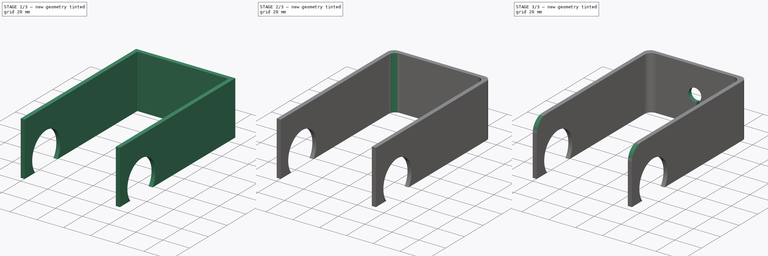
[diagram: build sequence overview — one tinted view per stage of 3, left to right]
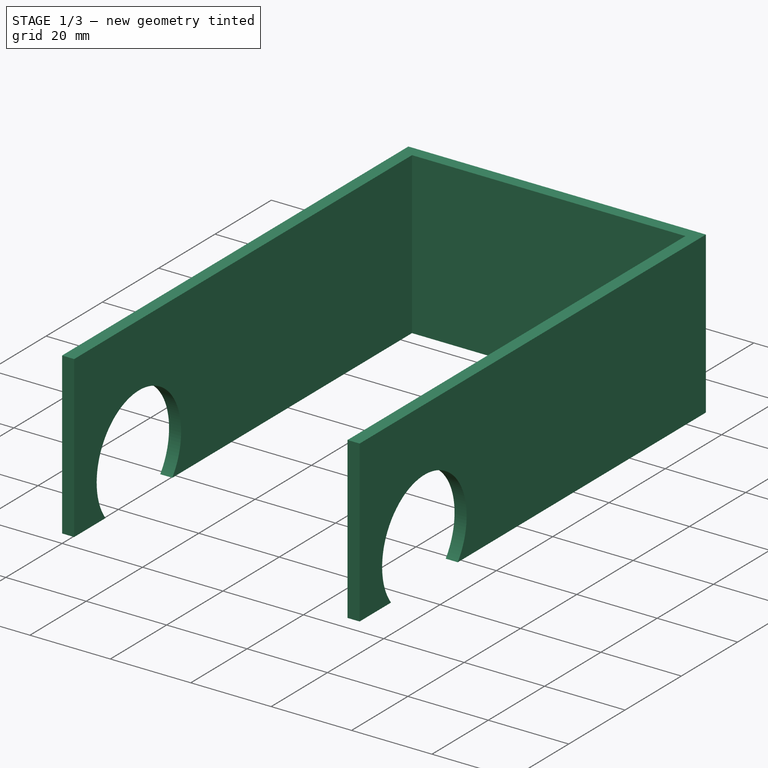
[diagram: stage 1 of 3 — iso view after this stage's code; geometry added in this stage tinted green]
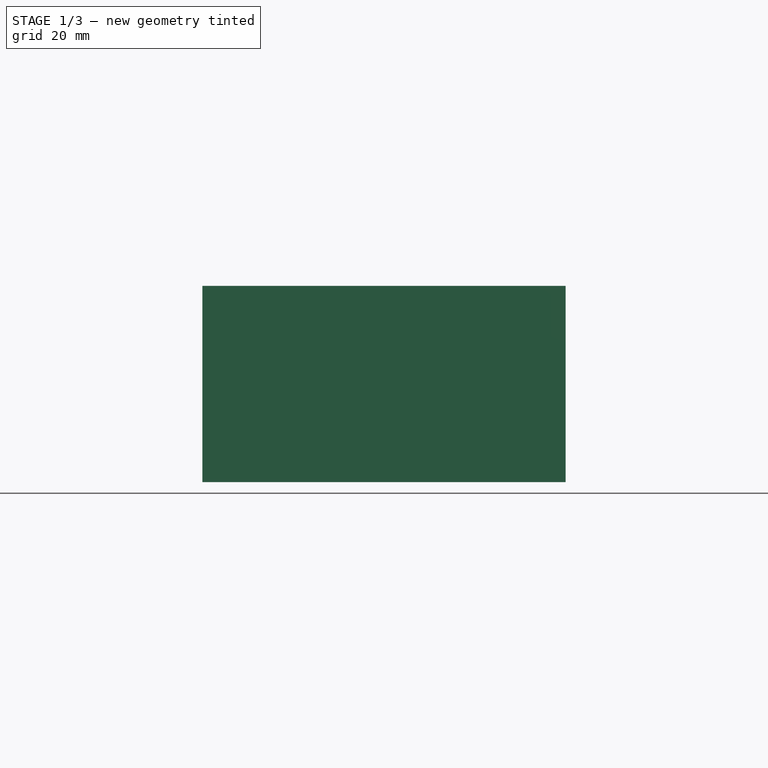
[diagram: stage 1 of 3 — front view after this stage's code; geometry added in this stage tinted green]
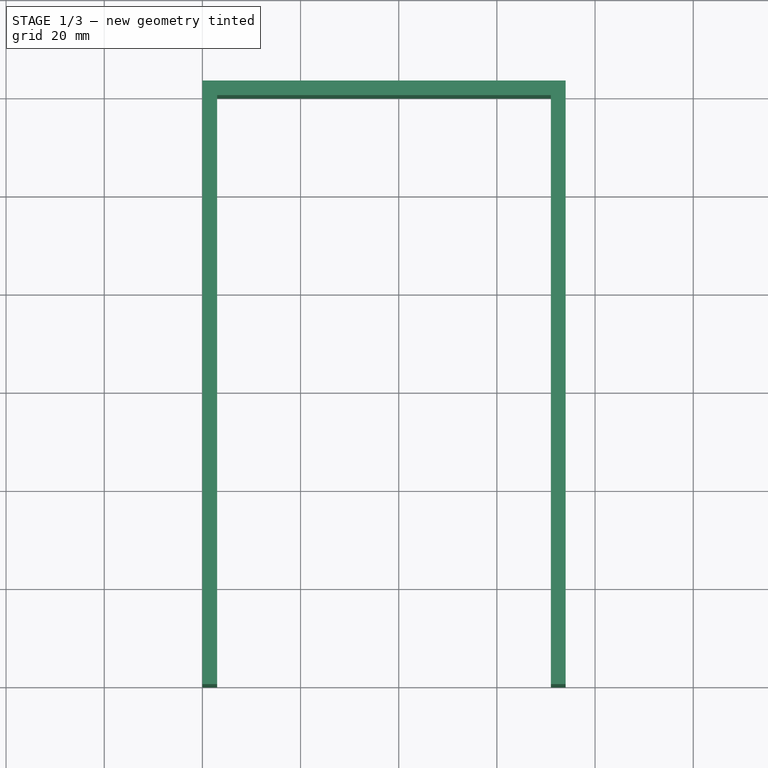
[diagram: stage 1 of 3 — top view after this stage's code; geometry added in this stage tinted green]
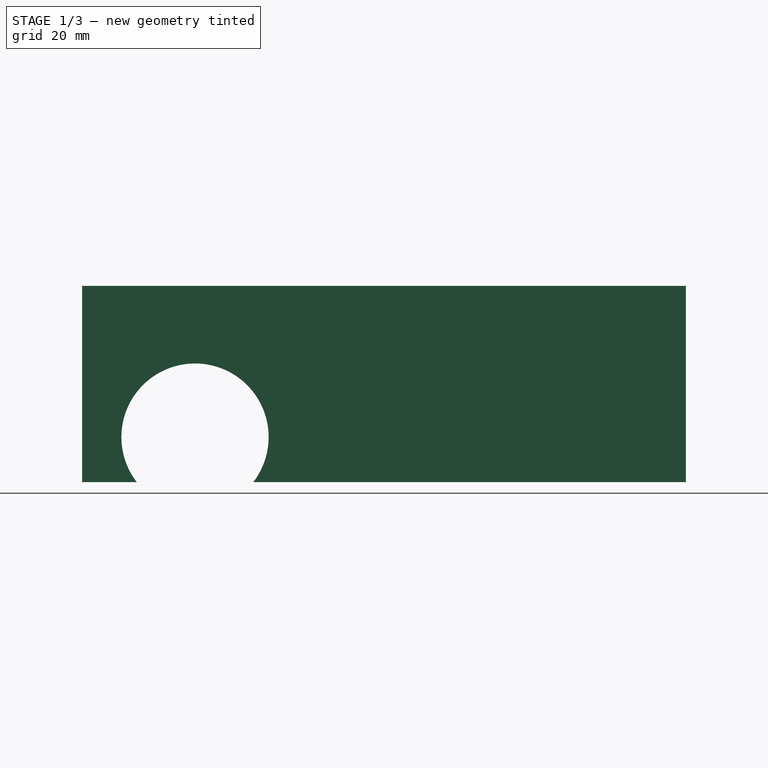
[diagram: stage 1 of 3 — right view after this stage's code; geometry added in this stage tinted green]
FCSTD DOCUMENT  (FreeCAD 0.16R4928 (Git))
Label: guia-carrete
License: All rights reserved
LicenseURL: http://en.wikipedia.org/wiki/All_rights_reserved
objects: Sketcher::SketchObject×3, PartDesign::Pocket×2, PartDesign::Fillet×2, PartDesign::Pad×1
note: 11 computed .brp shape members not serialized (recipe doc carries the construction recipe); baked Part::Feature solids carry a one-line shape summary decoded from their .brp

FEATURE [Sketcher::SketchObject] Sketch
  sketch-geometry (8):
    g0: LineSegment StartX=0 StartY=0 StartZ=0 EndX=0 EndY=123 EndZ=0
    g1: LineSegment StartX=0 StartY=123 StartZ=0 EndX=74 EndY=123 EndZ=0
    g2: LineSegment StartX=74 StartY=123 StartZ=0 EndX=74 EndY=0 EndZ=0
    g3: LineSegment StartX=74 StartY=0 StartZ=0 EndX=71 EndY=0 EndZ=0
    g4: LineSegment StartX=71 StartY=0 StartZ=0 EndX=71 EndY=120 EndZ=0
    g5: LineSegment StartX=71 StartY=120 StartZ=0 EndX=3 EndY=120 EndZ=0
    g6: LineSegment StartX=3 StartY=120 StartZ=0 EndX=3 EndY=0 EndZ=0
    g7: LineSegment StartX=3 StartY=0 StartZ=0 EndX=0 EndY=0 EndZ=0
  constraints (22):
    c: Coincident(g-1,g0)
    c: Vertical(g0)
    c: Coincident(g0,g1)
    c: Horizontal(g1)
    c: Coincident(g1,g2)
    c: PointOnObject(g2,g-1)
    c: Vertical(g2)
    c: Coincident(g2,g3)
    c: Horizontal(g3)
    c: Coincident(g3,g4)
    c: Vertical(g4)
    c: Coincident(g4,g5)
    c: Horizontal(g5)
    c: Coincident(g5,g6)
    c: Vertical(g6)
    c: Coincident(g6,g7)
    c: Coincident(g7,g0)
    c: Horizontal(g7)
    c: Equal(g7,g3)
    c: Distance(g7) = 3
    c: Distance(g6) = 120
    c: Distance(g5,g1) = 3
FEATURE [PartDesign::Pad] Pad
  Length = 40
  Length2 = 100
  Sketch = -> Sketch
  Type = 0
FEATURE [Sketcher::SketchObject] Sketch001
  ExternalGeometry = -> [Pad]
  Placement = pos=(0,0,0) rot=(0.57735,-0.57735,-0.57735;2.0944rad)
  Support = -> Pad [Face1]
  sketch-geometry (1):
    g0: Circle CenterX=-23 CenterY=9.18254 CenterZ=0 NormalX=0 NormalY=0 NormalZ=1 Radius=15
  constraints (2):
    c: Radius(g0) = 15
    c: Distance(g0,g-5) = 100
FEATURE [PartDesign::Pocket] Pocket
  Length = 5
  Sketch = -> Sketch001
  Type = 1
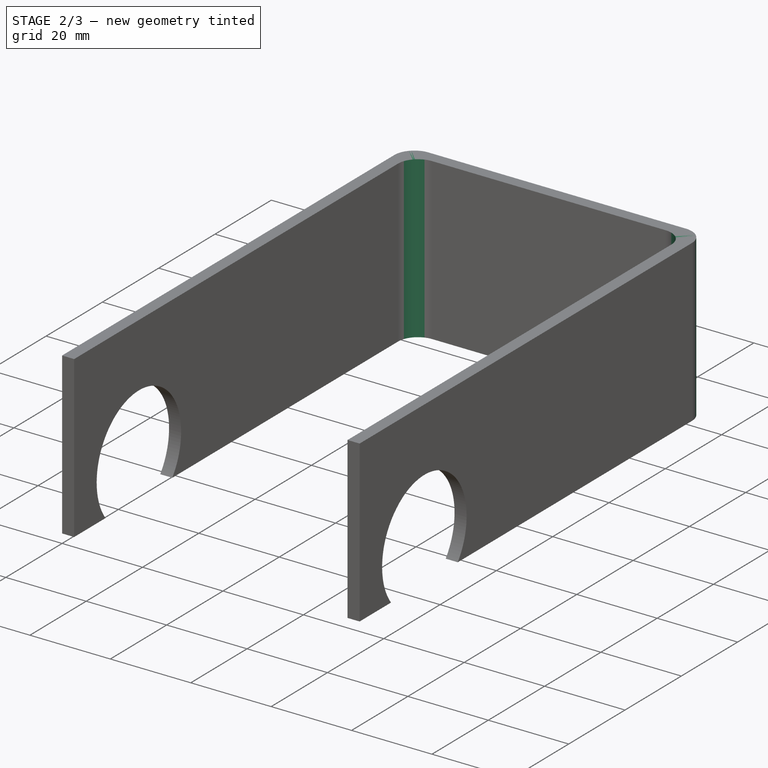
[diagram: stage 2 of 3 — iso view after this stage's code; geometry added in this stage tinted green]
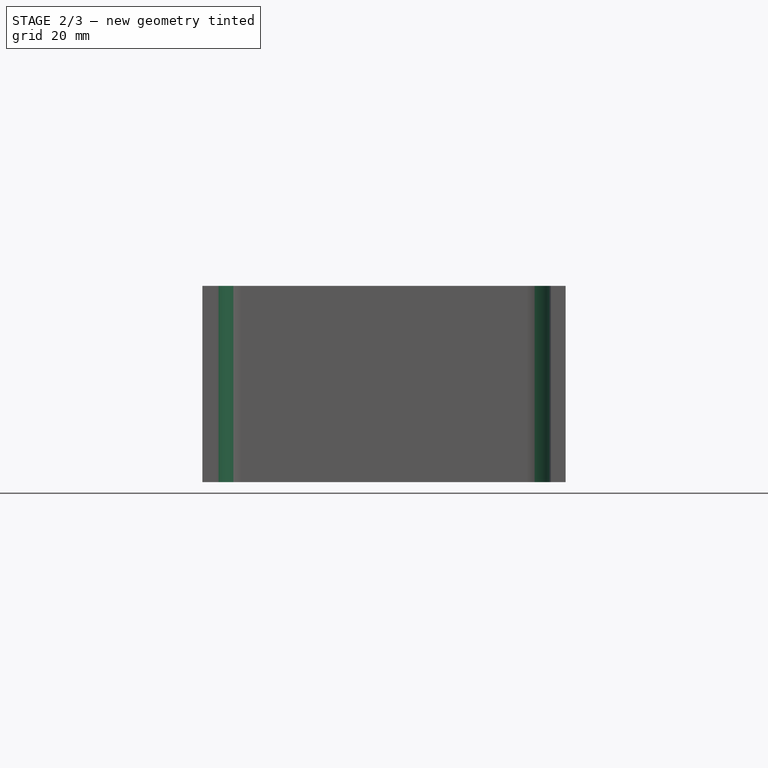
[diagram: stage 2 of 3 — front view after this stage's code; geometry added in this stage tinted green]
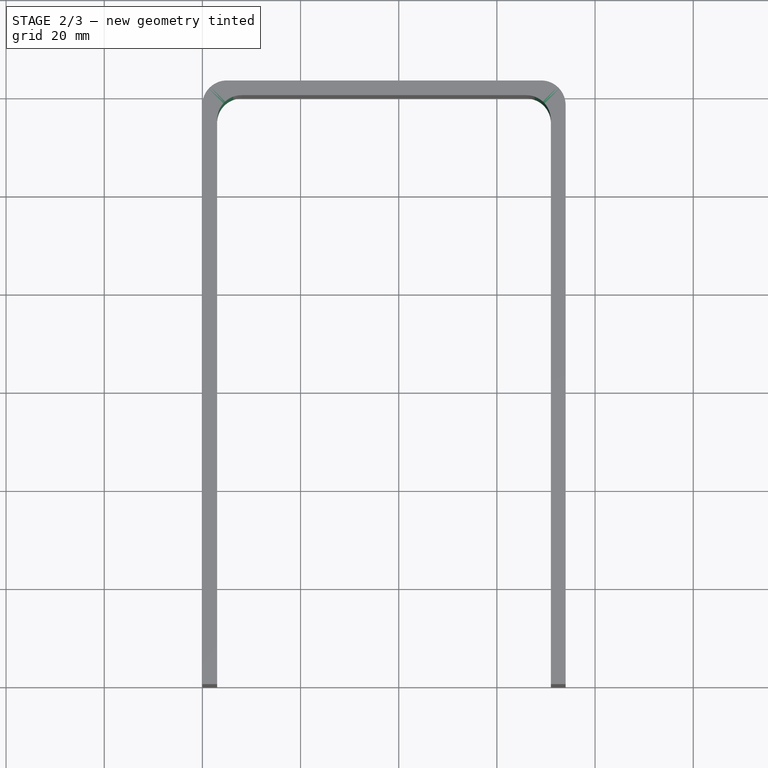
[diagram: stage 2 of 3 — top view after this stage's code; geometry added in this stage tinted green]
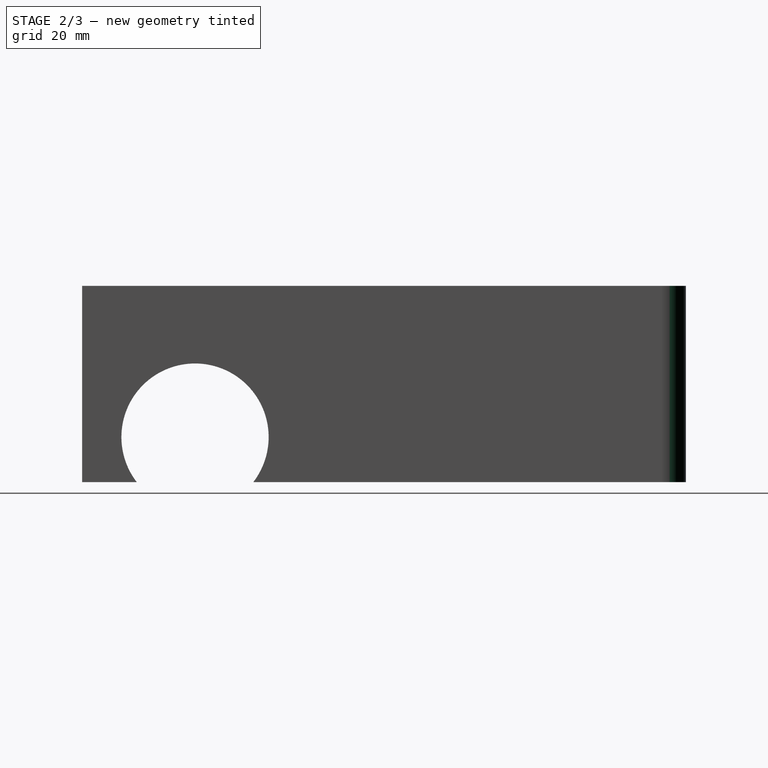
[diagram: stage 2 of 3 — right view after this stage's code; geometry added in this stage tinted green]
FEATURE [PartDesign::Fillet] Fillet
  Base = -> Pocket [Edge5,Edge21,Edge39,Edge30]
  Radius = 5
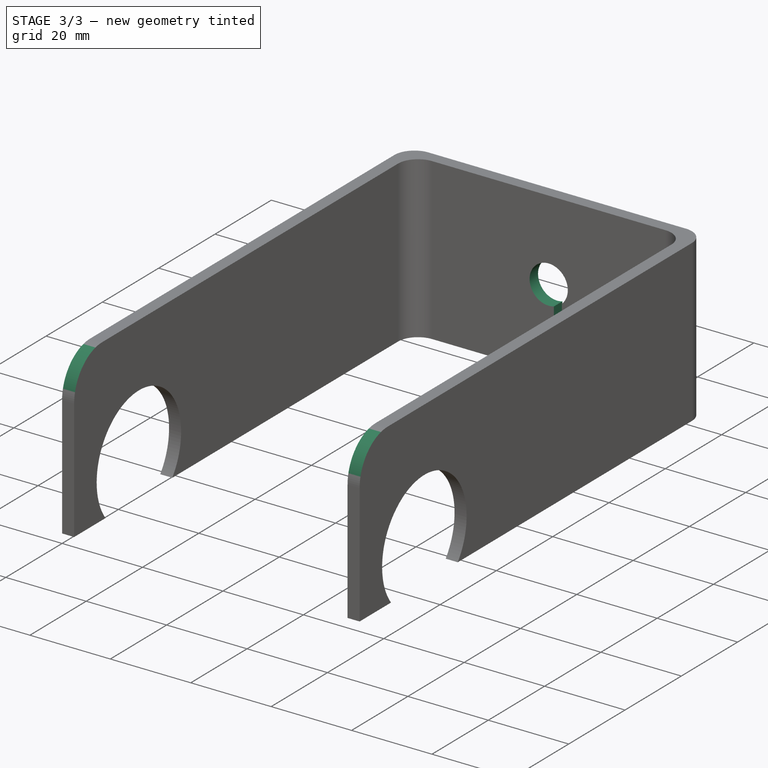
[diagram: stage 3 of 3 — iso view after this stage's code; geometry added in this stage tinted green]
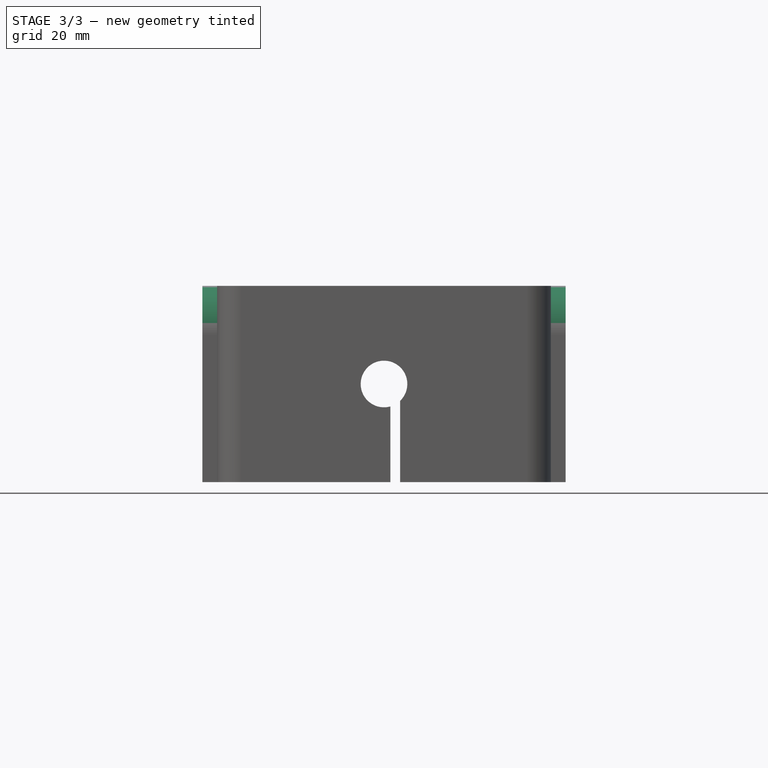
[diagram: stage 3 of 3 — front view after this stage's code; geometry added in this stage tinted green]
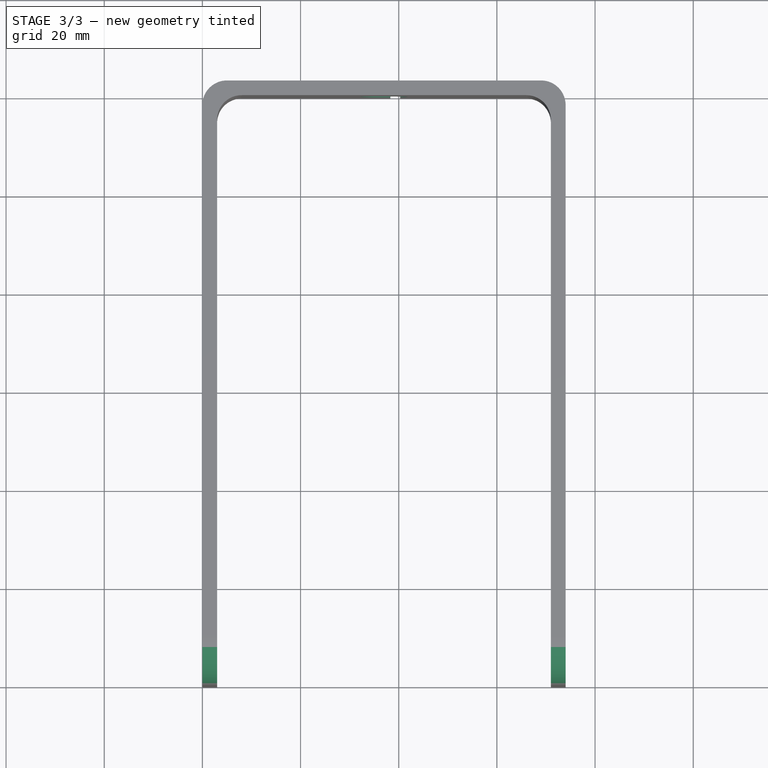
[diagram: stage 3 of 3 — top view after this stage's code; geometry added in this stage tinted green]
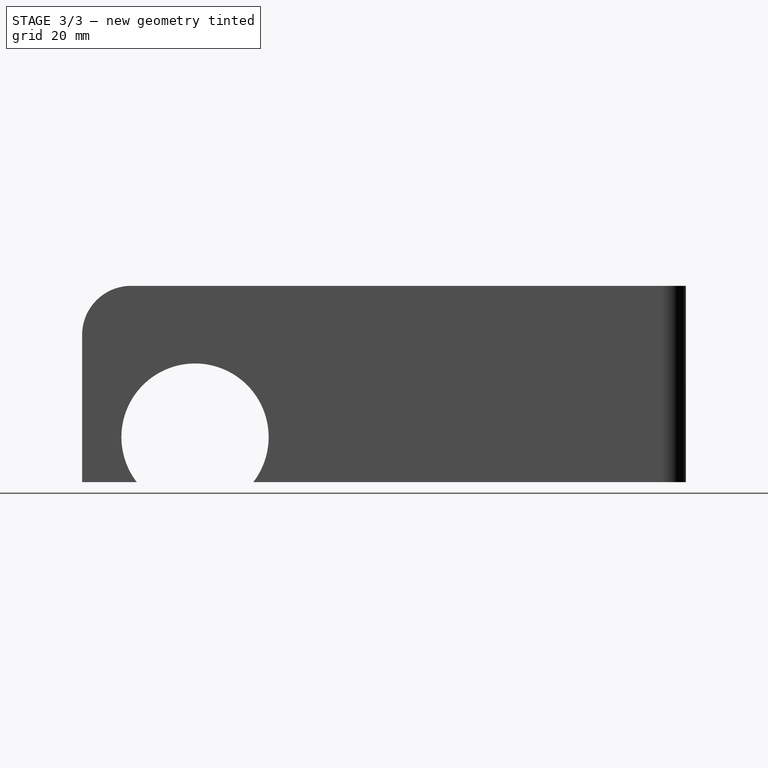
[diagram: stage 3 of 3 — right view after this stage's code; geometry added in this stage tinted green]
FEATURE [PartDesign::Fillet] Fillet001
  Base = -> Fillet [Edge30,Edge23]
  Radius = 10
FEATURE [Sketcher::SketchObject] Sketch002
  ExternalGeometry = -> [Fillet001]
  Placement = pos=(0,123,0) rot=(0,0.707107,0.707107;3.14159rad)
  Support = -> Fillet001 [Face11]
  sketch-geometry (6):
    g0: LineSegment [constr] StartX=-69 StartY=40 StartZ=0 EndX=-37 EndY=20 EndZ=0
    g1: LineSegment [constr] StartX=-37 StartY=20 StartZ=0 EndX=-5 EndY=0 EndZ=0
    g2: ArcOfCircle CenterX=-37 CenterY=20 CenterZ=0 NormalX=0 NormalY=0 NormalZ=1 Radius=4.75 StartAngle=4.43693 EndAngle=10.2299
    g3: LineSegment StartX=-40.2919 StartY=0 StartZ=0 EndX=-38.2919 EndY=0 EndZ=0
    g4: LineSegment StartX=-38.2919 StartY=0 StartZ=0 EndX=-38.2919 EndY=15.4291 EndZ=0
    g5: LineSegment StartX=-40.2919 StartY=16.5757 StartZ=0 EndX=-40.2919 EndY=0 EndZ=0
  constraints (16):
    c: Coincident(g0,g1)
    c: Coincident(g1,g-4)
    c: Coincident(g0,g-3)
    c: Equal(g0,g1)
    c: Parallel(g0,g1)
    c: Coincident(g2,g0)
    c: Radius(g2) = 4.75
    c: Coincident(g3,g4)
    c: Coincident(g5,g3)
    c: Horizontal(g3)
    c: Vertical(g4)
    c: Vertical(g5)
    c: PointOnObject(g3,g-1)
    c: Distance(g3) = 2
    c: Coincident(g2,g4)
    c: Coincident(g2,g5)
FEATURE [PartDesign::Pocket] Pocket001
  Length = 5
  Sketch = -> Sketch002
  Type = 0
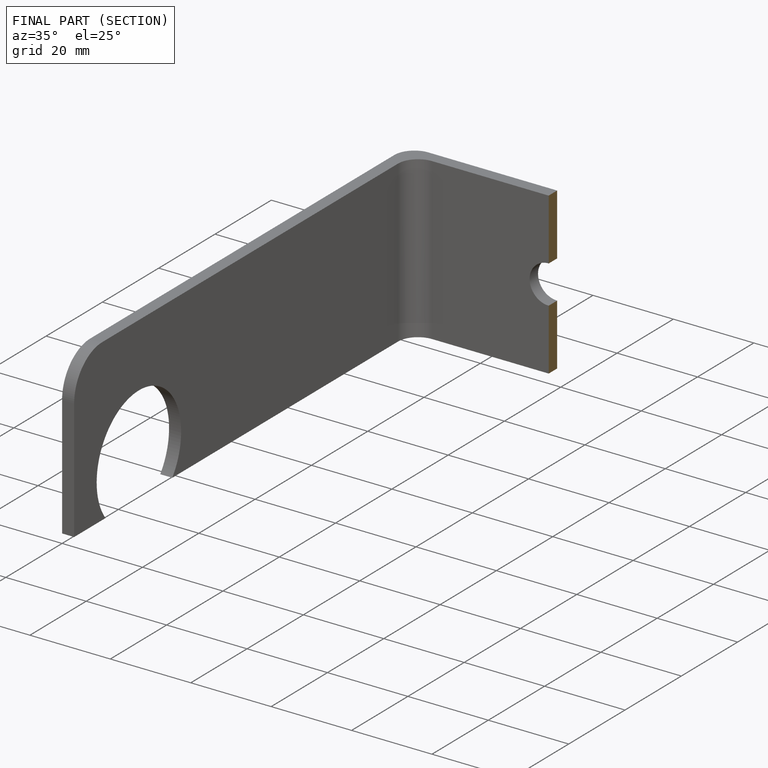
[diagram: finished part — half-section view (interior)]
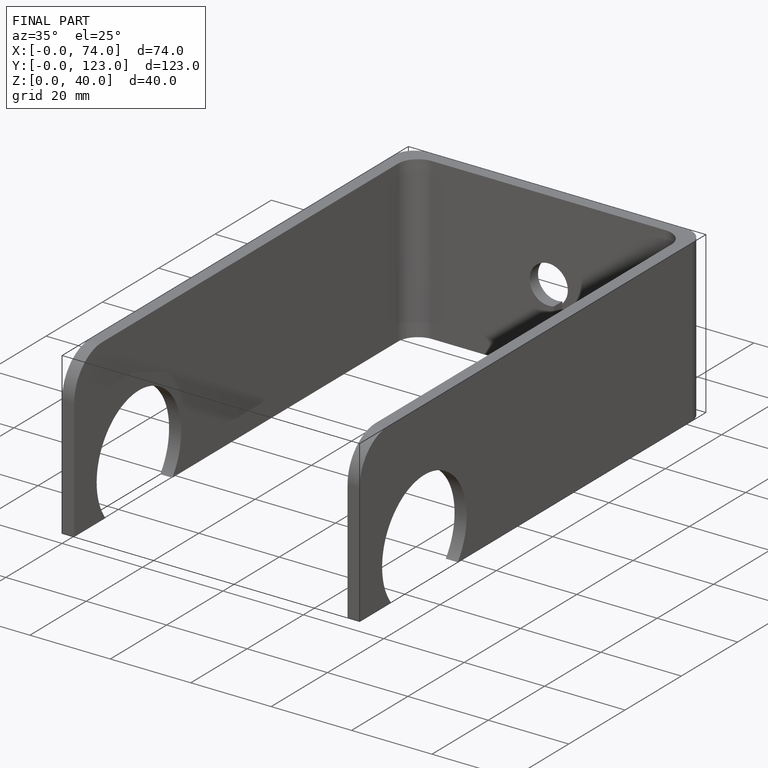
[diagram: finished part — iso view with bounding-box wireframe]
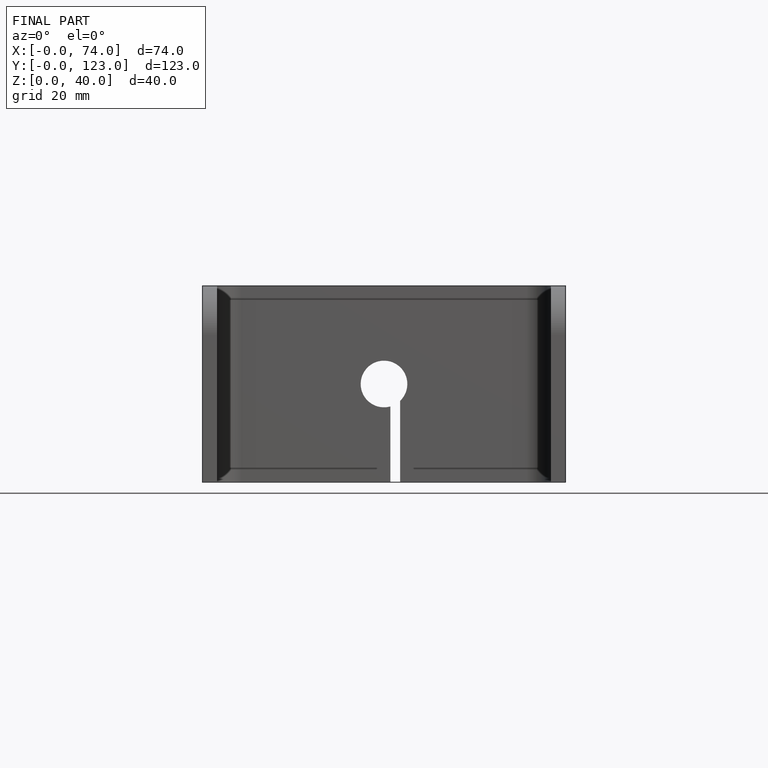
[diagram: finished part — front view with bounding-box wireframe]
